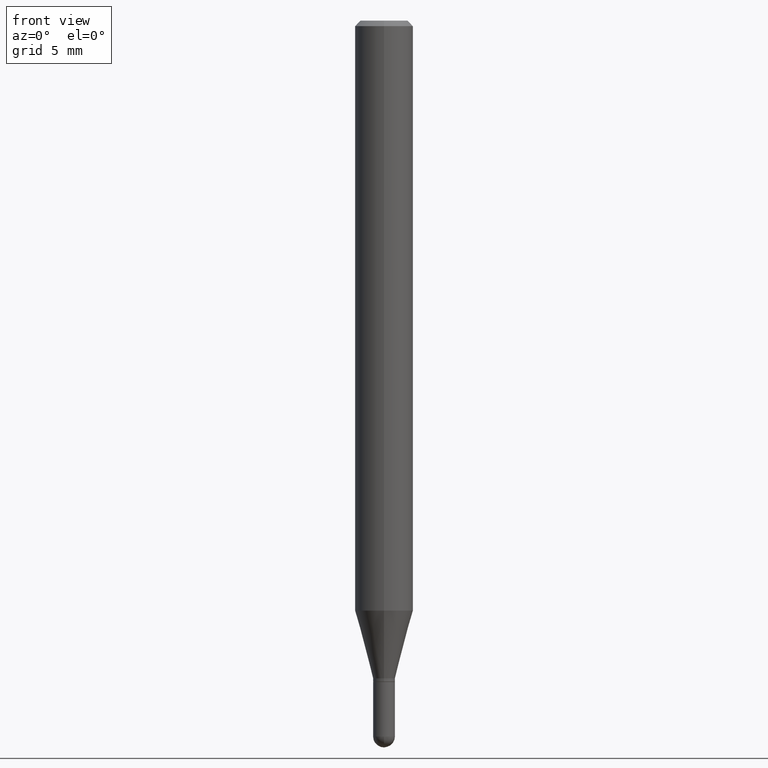
[diagram: clean part render]
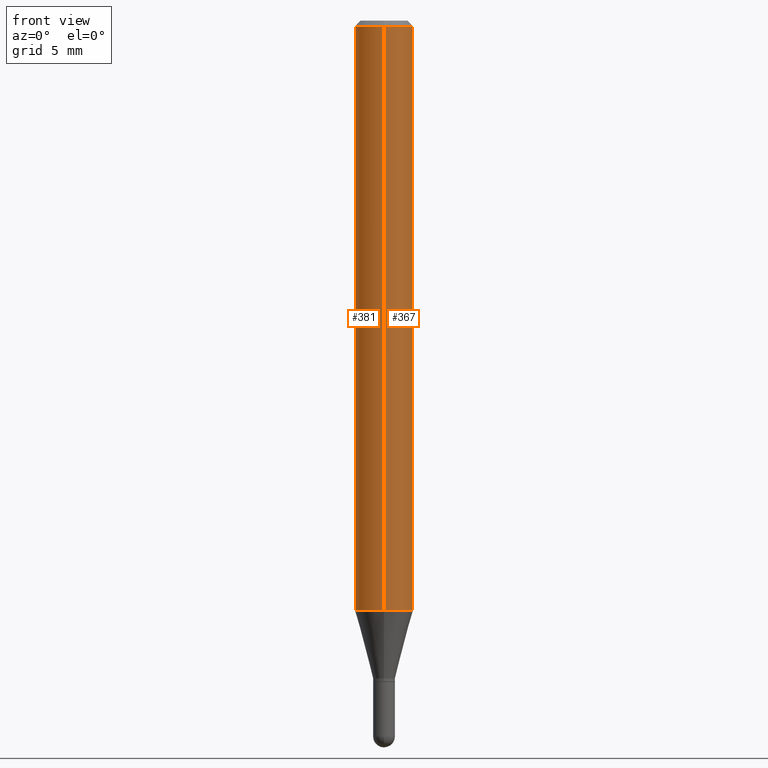
[diagram: same view with one multi-face feature highlighted, each face labeled with its STEP entity id]
A machine part, front view. The highlighted faces form ONE feature: a constant-radius fillet chain: 2 tangent blend faces with common blend radius 2.0002 mm. The faces share edges in the B-rep.
Their STEP definitions:
[1] entity #381 (Cylinder):
#12 = EDGE_CURVE ( 'NONE', #30, #59, #300, .T. ) ;
#15 = VECTOR ( 'NONE', #448, 39.37007874015748143 ) ;
#30 = VERTEX_POINT ( 'NONE', #442 ) ;
#59 = VERTEX_POINT ( 'NONE', #417 ) ;
#60 = CARTESIAN_POINT ( 'NONE',  ( -5.499083108677930499E-16, -0.07875000000000004219, -0.01499999999999974097 ) ) ;
#64 = FACE_OUTER_BOUND ( 'NONE', #115, .T. ) ;
#67 = AXIS2_PLACEMENT_3D ( 'NONE', #242, #204, #403 ) ;
#74 = DIRECTION ( 'NONE',  ( -6.982962677686264344E-15, -1.000000000000000000, 3.491451683439990934E-15 ) ) ;
#88 = CYLINDRICAL_SURFACE ( 'NONE', #302, 0.07875000000000000056 ) ;
#115 = EDGE_LOOP ( 'NONE', ( #183, #180, #194, #434 ) ) ;
#133 = LINE ( 'NONE', #187, #202 ) ;
#145 = CIRCLE ( 'NONE', #67, 0.07875000000000000056 ) ;
#157 = EDGE_CURVE ( 'NONE', #30, #334, #145, .T. ) ;
#178 = CARTESIAN_POINT ( 'NONE',  ( 5.595524044110787031E-16, 0.07875000000000000056, -2.749518200708992964E-16 ) ) ;
#180 = ORIENTED_EDGE ( 'NONE', *, *, #157, .T. ) ;
#183 = ORIENTED_EDGE ( 'NONE', *, *, #12, .F. ) ;
#187 = CARTESIAN_POINT ( 'NONE',  ( -5.499083108677933457E-16, -0.07875000000000000056, 2.749518200708992964E-16 ) ) ;
#194 = ORIENTED_EDGE ( 'NONE', *, *, #251, .T. ) ;
#202 = VECTOR ( 'NONE', #226, 39.37007874015748143 ) ;
#204 = DIRECTION ( 'NONE',  ( -2.445489514442478225E-29, 3.491451683439991329E-15, 1.000000000000000000 ) ) ;
#226 = DIRECTION ( 'NONE',  ( -2.445489514442478505E-29, 3.491451683439991329E-15, 1.000000000000000000 ) ) ;
#242 = CARTESIAN_POINT ( 'NONE',  ( 3.907606367009286482E-29, -5.578931640369670295E-15, -1.597883100267613043 ) ) ;
#251 = EDGE_CURVE ( 'NONE', #334, #263, #133, .T. ) ;
#263 = VERTEX_POINT ( 'NONE', #60 ) ;
#264 = CIRCLE ( 'NONE', #406, 0.07875000000000000056 ) ;
#269 = EDGE_CURVE ( 'NONE', #59, #263, #264, .T. ) ;
#296 = DIRECTION ( 'NONE',  ( -2.445489514442478225E-29, 3.491451683439991329E-15, 1.000000000000000000 ) ) ;
#299 = CARTESIAN_POINT ( 'NONE',  ( 3.668234271663721068E-31, -5.237177525159993378E-17, -0.01500000000000001679 ) ) ;
#300 = LINE ( 'NONE', #178, #15 ) ;
#302 = AXIS2_PLACEMENT_3D ( 'NONE', #493, #296, #74 ) ;
#334 = VERTEX_POINT ( 'NONE', #372 ) ;
#340 = DIRECTION ( 'NONE',  ( -6.982962677686264344E-15, -1.000000000000000000, 3.496114991891765576E-15 ) ) ;
#372 = CARTESIAN_POINT ( 'NONE',  ( -5.499083108677545929E-16, -0.07875000000000559330, -1.597883100267612599 ) ) ;
#381 = ADVANCED_FACE ( 'NONE', ( #64 ), #88, .T. ) ;
#403 = DIRECTION ( 'NONE',  ( -6.982962677686264344E-15, -1.000000000000000000, 3.469013325287953293E-15 ) ) ;
#406 = AXIS2_PLACEMENT_3D ( 'NONE', #299, #466, #340 ) ;
#417 = CARTESIAN_POINT ( 'NONE',  ( 5.595524044111180475E-16, 0.07874999999999994504, -0.01500000000000029261 ) ) ;
#434 = ORIENTED_EDGE ( 'NONE', *, *, #269, .F. ) ;
#442 = CARTESIAN_POINT ( 'NONE',  ( 5.595524044111175545E-16, 0.07874999999999438005, -1.597883100267613266 ) ) ;
#448 = DIRECTION ( 'NONE',  ( -2.445489514442478505E-29, 3.491451683439991329E-15, 1.000000000000000000 ) ) ;
#466 = DIRECTION ( 'NONE',  ( -2.445489514442478225E-29, 3.491451683439991329E-15, 1.000000000000000000 ) ) ;
#493 = CARTESIAN_POINT ( 'NONE',  ( 0.000000000000000000, 0.000000000000000000, 0.000000000000000000 ) ) ;
[2] entity #367 (Cylinder):
#12 = EDGE_CURVE ( 'NONE', #30, #59, #300, .T. ) ;
#15 = VECTOR ( 'NONE', #448, 39.37007874015748143 ) ;
#23 = EDGE_CURVE ( 'NONE', #334, #30, #128, .T. ) ;
#30 = VERTEX_POINT ( 'NONE', #442 ) ;
#52 = DIRECTION ( 'NONE',  ( -6.982962677686264344E-15, -1.000000000000000000, 3.496114991891765576E-15 ) ) ;
#59 = VERTEX_POINT ( 'NONE', #417 ) ;
#60 = CARTESIAN_POINT ( 'NONE',  ( -5.499083108677930499E-16, -0.07875000000000004219, -0.01499999999999974097 ) ) ;
#103 = CYLINDRICAL_SURFACE ( 'NONE', #165, 0.07875000000000000056 ) ;
#128 = CIRCLE ( 'NONE', #291, 0.07875000000000000056 ) ;
#133 = LINE ( 'NONE', #187, #202 ) ;
#165 = AXIS2_PLACEMENT_3D ( 'NONE', #265, #502, #338 ) ;
#178 = CARTESIAN_POINT ( 'NONE',  ( 5.595524044110787031E-16, 0.07875000000000000056, -2.749518200708992964E-16 ) ) ;
#187 = CARTESIAN_POINT ( 'NONE',  ( -5.499083108677933457E-16, -0.07875000000000000056, 2.749518200708992964E-16 ) ) ;
#191 = CIRCLE ( 'NONE', #391, 0.07875000000000000056 ) ;
#198 = ORIENTED_EDGE ( 'NONE', *, *, #23, .T. ) ;
#202 = VECTOR ( 'NONE', #226, 39.37007874015748143 ) ;
#217 = DIRECTION ( 'NONE',  ( -2.445489514442478225E-29, 3.491451683439991329E-15, 1.000000000000000000 ) ) ;
#226 = DIRECTION ( 'NONE',  ( -2.445489514442478505E-29, 3.491451683439991329E-15, 1.000000000000000000 ) ) ;
#233 = DIRECTION ( 'NONE',  ( -6.982962677686264344E-15, -1.000000000000000000, 3.469013325287953293E-15 ) ) ;
#251 = EDGE_CURVE ( 'NONE', #334, #263, #133, .T. ) ;
#253 = CARTESIAN_POINT ( 'NONE',  ( 3.668234271663721068E-31, -5.237177525159993378E-17, -0.01500000000000001679 ) ) ;
#263 = VERTEX_POINT ( 'NONE', #60 ) ;
#265 = CARTESIAN_POINT ( 'NONE',  ( 0.000000000000000000, 0.000000000000000000, 0.000000000000000000 ) ) ;
#272 = EDGE_LOOP ( 'NONE', ( #198, #420, #345, #425 ) ) ;
#291 = AXIS2_PLACEMENT_3D ( 'NONE', #386, #313, #233 ) ;
#293 = FACE_OUTER_BOUND ( 'NONE', #272, .T. ) ;
#300 = LINE ( 'NONE', #178, #15 ) ;
#313 = DIRECTION ( 'NONE',  ( -2.445489514442478225E-29, 3.491451683439991329E-15, 1.000000000000000000 ) ) ;
#327 = EDGE_CURVE ( 'NONE', #263, #59, #191, .T. ) ;
#334 = VERTEX_POINT ( 'NONE', #372 ) ;
#338 = DIRECTION ( 'NONE',  ( -6.982962677686264344E-15, -1.000000000000000000, 3.491451683439990934E-15 ) ) ;
#345 = ORIENTED_EDGE ( 'NONE', *, *, #327, .F. ) ;
#367 = ADVANCED_FACE ( 'NONE', ( #293 ), #103, .T. ) ;
#372 = CARTESIAN_POINT ( 'NONE',  ( -5.499083108677545929E-16, -0.07875000000000559330, -1.597883100267612599 ) ) ;
#386 = CARTESIAN_POINT ( 'NONE',  ( 3.907606367009286482E-29, -5.578931640369670295E-15, -1.597883100267613043 ) ) ;
#391 = AXIS2_PLACEMENT_3D ( 'NONE', #253, #217, #52 ) ;
#417 = CARTESIAN_POINT ( 'NONE',  ( 5.595524044111180475E-16, 0.07874999999999994504, -0.01500000000000029261 ) ) ;
#420 = ORIENTED_EDGE ( 'NONE', *, *, #12, .T. ) ;
#425 = ORIENTED_EDGE ( 'NONE', *, *, #251, .F. ) ;
#442 = CARTESIAN_POINT ( 'NONE',  ( 5.595524044111175545E-16, 0.07874999999999438005, -1.597883100267613266 ) ) ;
#448 = DIRECTION ( 'NONE',  ( -2.445489514442478505E-29, 3.491451683439991329E-15, 1.000000000000000000 ) ) ;
#502 = DIRECTION ( 'NONE',  ( -2.445489514442478225E-29, 3.491451683439991329E-15, 1.000000000000000000 ) ) ;